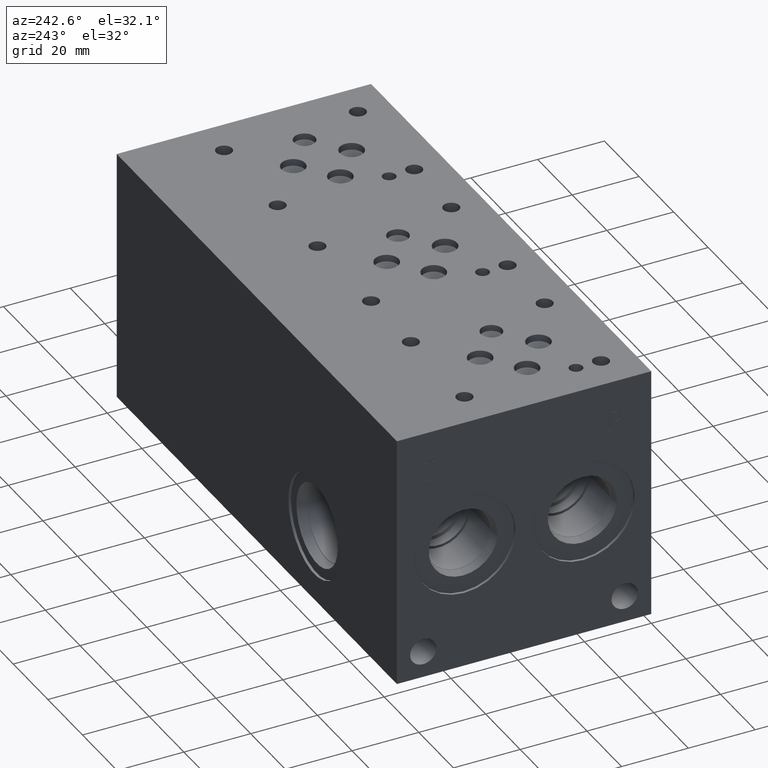
[diagram: clean part render]
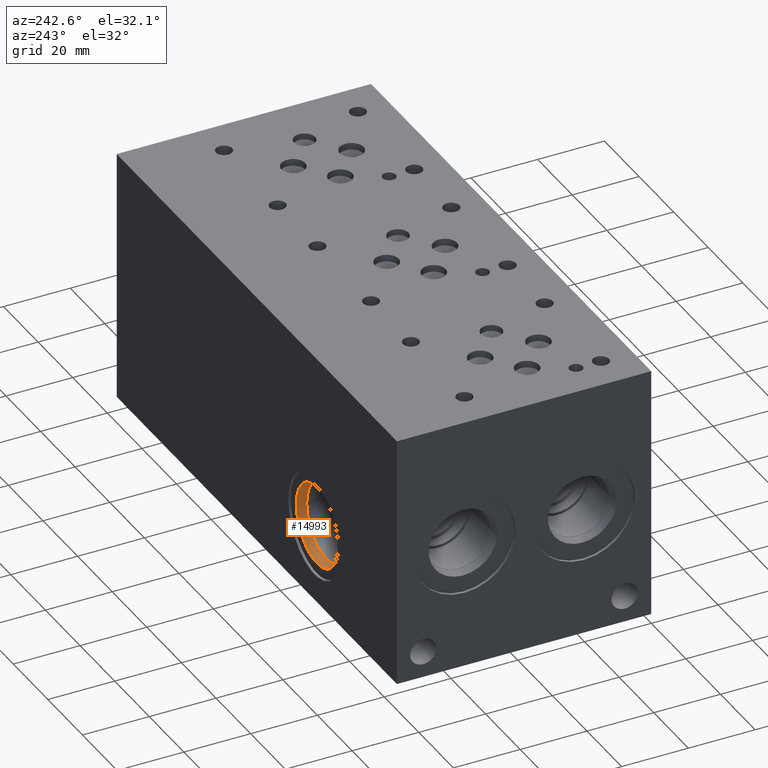
[diagram: same view with one face highlighted and labeled with its STEP entity id]
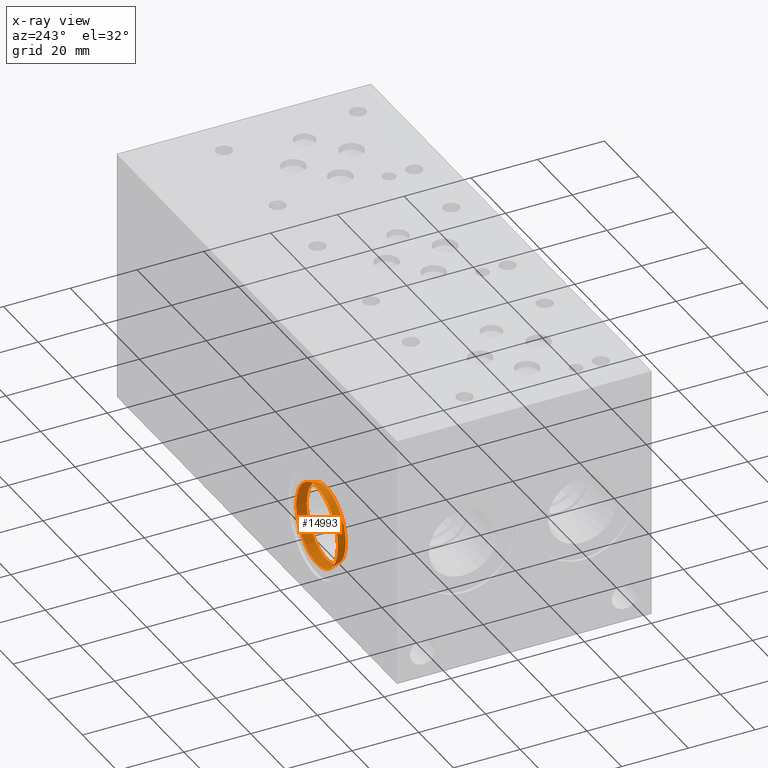
[diagram: x-ray of the same camera — body ghosted, the highlighted face saturated]
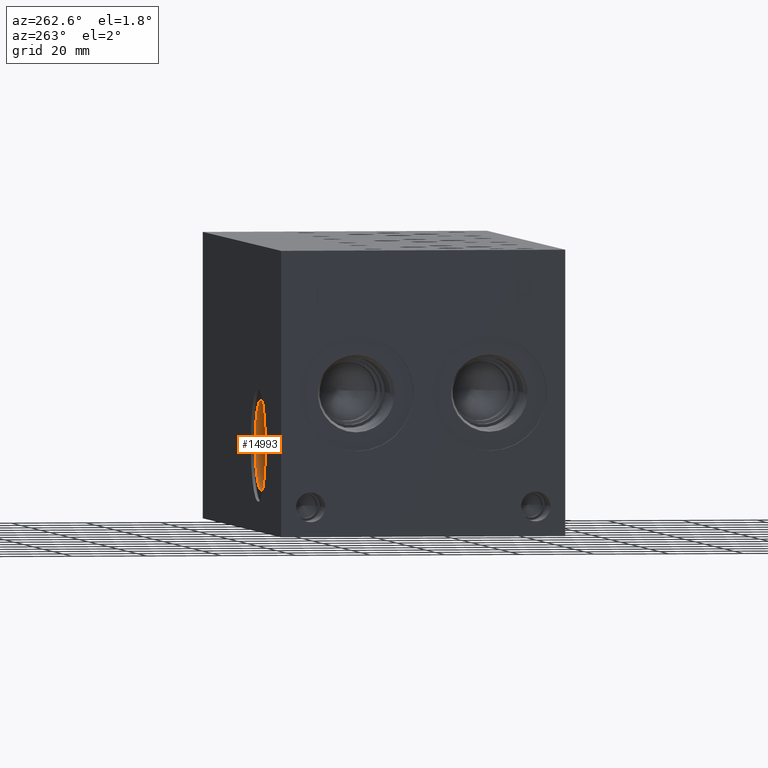
[diagram: same view with one face highlighted and labeled with its STEP entity id]
A machine part, auxiliary view. The second image highlights one B-rep face of the part: STEP entity #14993.
The next image is the same camera in x-ray: the body ghosted, the highlighted face saturated — about 0% of this face is hidden behind the body in this view.
A second angle (auxiliary view) of the same face is appended — the face is thin or edge-on in the first view.
In plain terms, the highlighted conical surface has half-angle 15 deg.
Its self-contained STEP definition (entity closure, byte-faithful):
#14=CONICAL_SURFACE('',#15630,11.635,0.261799386837955);
#236=CIRCLE('',#15628,12.);
#237=CIRCLE('',#15629,12.);
#238=CIRCLE('',#15631,11.27);
#239=CIRCLE('',#15632,11.27);
#1906=FACE_OUTER_BOUND('',#2761,.T.);
#2761=EDGE_LOOP('',(#12311,#12312,#12313,#12314,#12315,#12316));
#4178=LINE('',#25320,#5485);
#5485=VECTOR('',#18141,11.635);
#6722=VERTEX_POINT('',#25314);
#6723=VERTEX_POINT('',#25315);
#6724=VERTEX_POINT('',#25319);
#6725=VERTEX_POINT('',#25321);
#8696=EDGE_CURVE('',#6722,#6723,#236,.T.);
#8697=EDGE_CURVE('',#6723,#6722,#237,.T.);
#8698=EDGE_CURVE('',#6723,#6724,#4178,.T.);
#8699=EDGE_CURVE('',#6724,#6725,#238,.T.);
#8700=EDGE_CURVE('',#6725,#6724,#239,.T.);
#12311=ORIENTED_EDGE('',*,*,#8696,.F.);
#12312=ORIENTED_EDGE('',*,*,#8697,.F.);
#12313=ORIENTED_EDGE('',*,*,#8698,.T.);
#12314=ORIENTED_EDGE('',*,*,#8699,.T.);
#12315=ORIENTED_EDGE('',*,*,#8700,.T.);
#12316=ORIENTED_EDGE('',*,*,#8698,.F.);
#14993=ADVANCED_FACE('',(#1906),#14,.F.);
#15628=AXIS2_PLACEMENT_3D('',#25316,#18135,#18136);
#15629=AXIS2_PLACEMENT_3D('',#25317,#18137,#18138);
#15630=AXIS2_PLACEMENT_3D('',#25318,#18139,#18140);
#15631=AXIS2_PLACEMENT_3D('',#25322,#18142,#18143);
#15632=AXIS2_PLACEMENT_3D('',#25323,#18144,#18145);
#18135=DIRECTION('center_axis',(0.,-1.,0.));
#18136=DIRECTION('ref_axis',(1.,0.,0.));
#18137=DIRECTION('center_axis',(0.,-1.,0.));
#18138=DIRECTION('ref_axis',(1.,0.,0.));
#18139=DIRECTION('center_axis',(0.,1.,0.));
#18140=DIRECTION('ref_axis',(1.,0.,0.));
#18141=DIRECTION('',(0.258819044174078,-0.965925826537844,3.16961914006162E-17));
#18142=DIRECTION('center_axis',(0.,-1.,0.));
#18143=DIRECTION('ref_axis',(1.,0.,0.));
#18144=DIRECTION('center_axis',(0.,-1.,0.));
#18145=DIRECTION('ref_axis',(1.,0.,0.));
#25314=CARTESIAN_POINT('',(59.625,75.41,23.0124));
#25315=CARTESIAN_POINT('',(35.625,75.41,23.0124));
#25316=CARTESIAN_POINT('Origin',(47.625,75.41,23.0124));
#25317=CARTESIAN_POINT('Origin',(47.625,75.41,23.0124));
#25318=CARTESIAN_POINT('Origin',(47.625,74.04780145,23.0124));
#25319=CARTESIAN_POINT('',(36.355,72.6856029,23.0124));
#25320=CARTESIAN_POINT('',(35.99,74.04780145,23.0124));
#25321=CARTESIAN_POINT('',(58.895,72.6856029,23.0124));
#25322=CARTESIAN_POINT('Origin',(47.625,72.6856029,23.0124));
#25323=CARTESIAN_POINT('Origin',(47.625,72.6856029,23.0124));